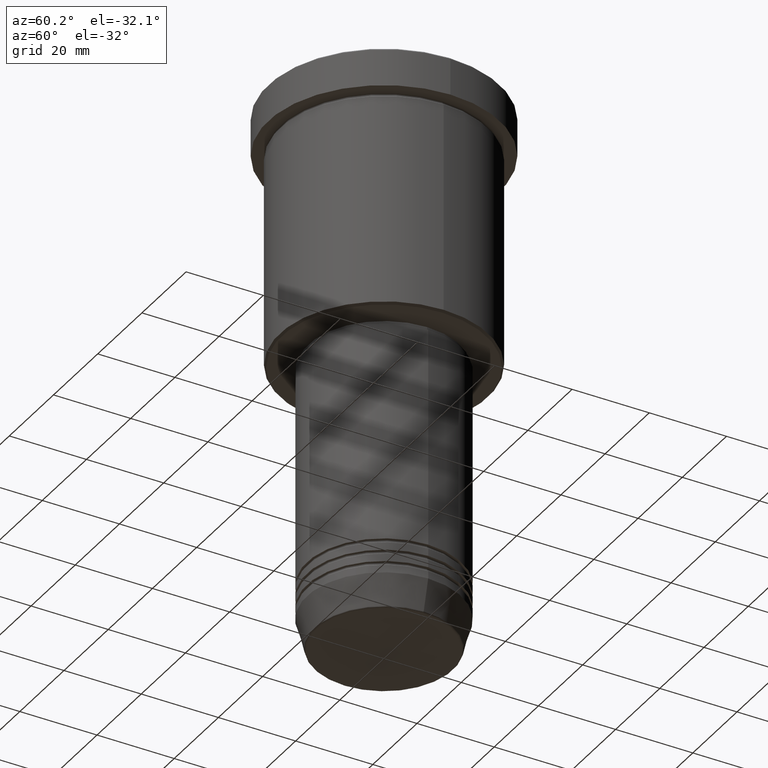
[diagram: clean part render]
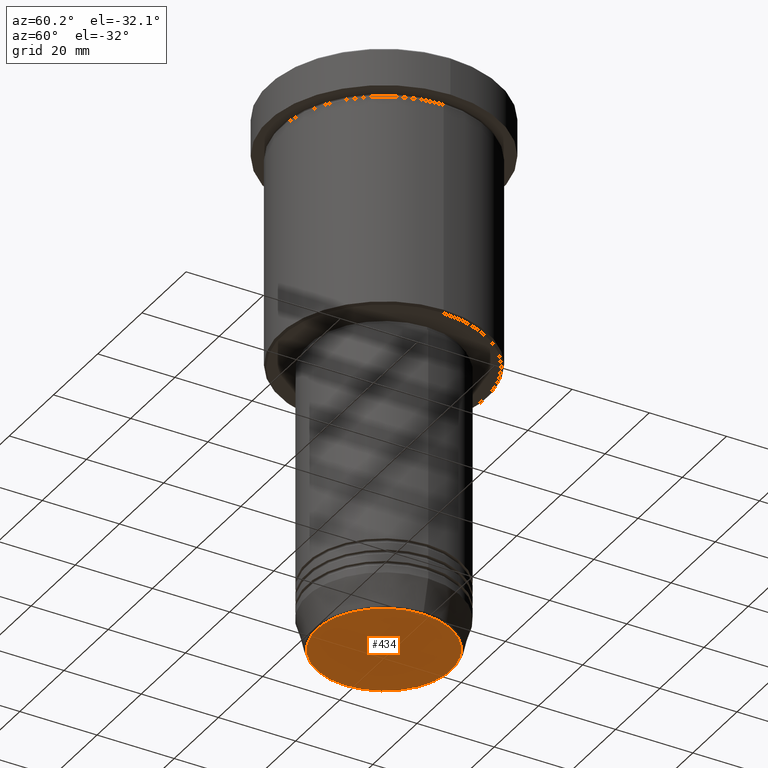
[diagram: same view with one face highlighted and labeled with its STEP entity id]
A machine part, auxiliary view. The second image highlights one B-rep face of the part: STEP entity #434.
In plain terms, the highlighted planar face has unit normal (0, -0, 1).
Its self-contained STEP definition (entity closure, byte-faithful):
#30 = PLANE ( 'NONE',  #97 ) ;
#40 = CIRCLE ( 'NONE', #1014, 17.47274296656153325 ) ;
#81 = AXIS2_PLACEMENT_3D ( 'NONE', #429, #727, #798 ) ;
#97 = AXIS2_PLACEMENT_3D ( 'NONE', #587, #121, #1041 ) ;
#120 = EDGE_LOOP ( 'NONE', ( #955, #979 ) ) ;
#121 = DIRECTION ( 'NONE',  ( 0.000000000000000000, -0.000000000000000000, 1.000000000000000000 ) ) ;
#367 = VERTEX_POINT ( 'NONE', #1119 ) ;
#405 = CARTESIAN_POINT ( 'NONE',  ( 0.000000000000000000, 0.000000000000000000, -141.0000000000000000 ) ) ;
#429 = CARTESIAN_POINT ( 'NONE',  ( 0.000000000000000000, 0.000000000000000000, -141.0000000000000000 ) ) ;
#434 = ADVANCED_FACE ( 'NONE', ( #1023 ), #30, .F. ) ;
#494 = EDGE_CURVE ( 'NONE', #367, #1111, #40, .T. ) ;
#499 = DIRECTION ( 'NONE',  ( 1.000000000000000000, 0.000000000000000000, 0.000000000000000000 ) ) ;
#587 = CARTESIAN_POINT ( 'NONE',  ( 0.000000000000000000, 0.000000000000000000, -141.0000000000000000 ) ) ;
#727 = DIRECTION ( 'NONE',  ( 0.000000000000000000, 0.000000000000000000, -1.000000000000000000 ) ) ;
#730 = EDGE_CURVE ( 'NONE', #1111, #367, #1020, .T. ) ;
#798 = DIRECTION ( 'NONE',  ( 1.000000000000000000, 0.000000000000000000, 0.000000000000000000 ) ) ;
#865 = DIRECTION ( 'NONE',  ( 0.000000000000000000, 0.000000000000000000, -1.000000000000000000 ) ) ;
#878 = CARTESIAN_POINT ( 'NONE',  ( -17.47274296656153325, 2.169366823916867714E-15, -141.0000000000000000 ) ) ;
#955 = ORIENTED_EDGE ( 'NONE', *, *, #494, .T. ) ;
#979 = ORIENTED_EDGE ( 'NONE', *, *, #730, .T. ) ;
#1014 = AXIS2_PLACEMENT_3D ( 'NONE', #405, #865, #499 ) ;
#1020 = CIRCLE ( 'NONE', #81, 17.47274296656153325 ) ;
#1023 = FACE_OUTER_BOUND ( 'NONE', #120, .T. ) ;
#1041 = DIRECTION ( 'NONE',  ( 1.000000000000000000, 0.000000000000000000, 0.000000000000000000 ) ) ;
#1111 = VERTEX_POINT ( 'NONE', #878 ) ;
#1119 = CARTESIAN_POINT ( 'NONE',  ( 17.47274296656153325, 0.000000000000000000, -141.0000000000000000 ) ) ;